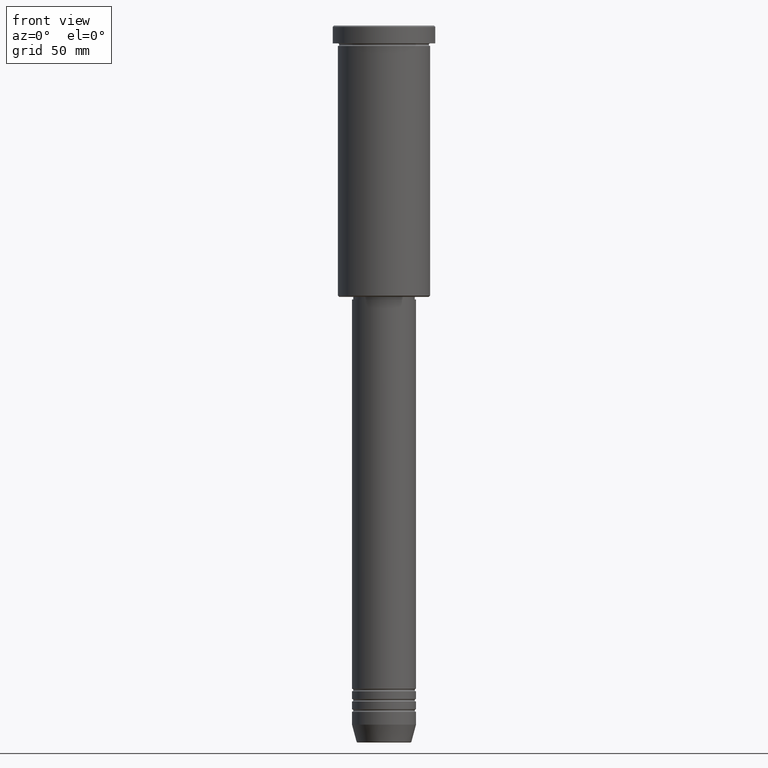
[diagram: clean part render]
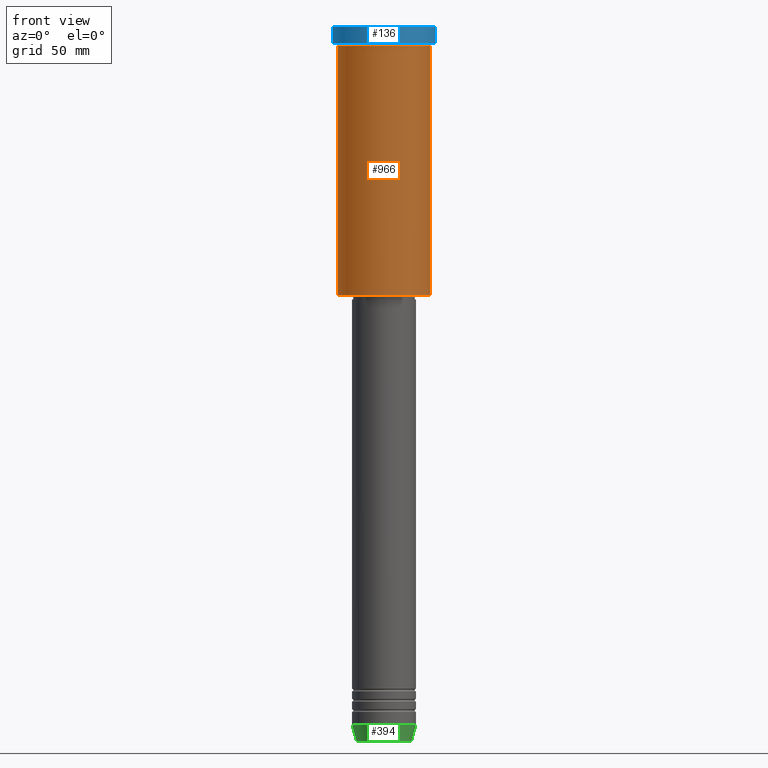
[diagram: same view with three faces highlighted in distinct colors, each labeled with its STEP entity id]
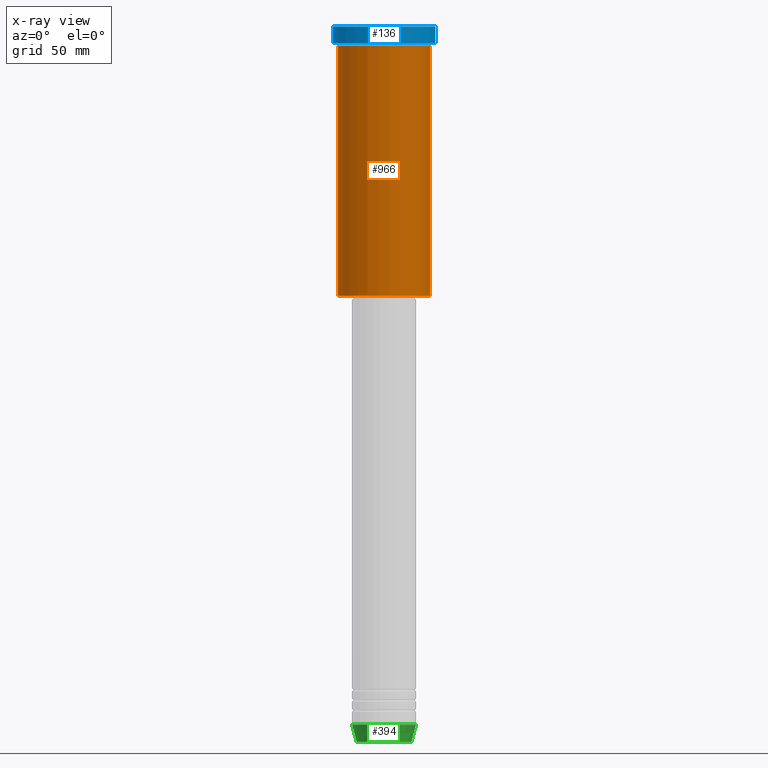
[diagram: x-ray of the same camera — body ghosted, the three highlighted faces saturated]
A machine part, front view with three faces highlighted in distinct colors.
The next image is the same camera in x-ray (body ghosted, the three faces saturated) — at least one of them is partly hidden behind the body in this view.
Their STEP definitions:

[orange] entity #966 — the highlighted cylindrical surface (partial cylindrical patch) has radius 18 mm, axis along (-0, -0, 1).
#110 = CARTESIAN_POINT ( 'NONE',  ( 18.00000000000000000, 0.000000000000000000, -7.999999999999996447 ) ) ;
#145 = EDGE_CURVE ( 'NONE', #833, #1133, #1112, .T. ) ;
#184 = CARTESIAN_POINT ( 'NONE',  ( -18.00000000000000000, 2.204364238465235428E-15, 0.000000000000000000 ) ) ;
#223 = AXIS2_PLACEMENT_3D ( 'NONE', #511, #389, #1116 ) ;
#225 = VECTOR ( 'NONE', #531, 1000.000000000000000 ) ;
#240 = DIRECTION ( 'NONE',  ( -1.000000000000000000, 0.000000000000000000, 0.000000000000000000 ) ) ;
#275 = LINE ( 'NONE', #184, #225 ) ;
#314 = ORIENTED_EDGE ( 'NONE', *, *, #425, .T. ) ;
#330 = DIRECTION ( 'NONE',  ( -0.000000000000000000, -0.000000000000000000, 1.000000000000000000 ) ) ;
#366 = VERTEX_POINT ( 'NONE', #110 ) ;
#385 = CARTESIAN_POINT ( 'NONE',  ( -18.00000000000000000, 2.204364238465235428E-15, -7.999999999999996447 ) ) ;
#389 = DIRECTION ( 'NONE',  ( -0.000000000000000000, -0.000000000000000000, 1.000000000000000000 ) ) ;
#425 = EDGE_CURVE ( 'NONE', #1133, #366, #840, .T. ) ;
#442 = VERTEX_POINT ( 'NONE', #385 ) ;
#463 = CARTESIAN_POINT ( 'NONE',  ( 18.00000000000000000, 0.000000000000000000, -105.4999999999999432 ) ) ;
#499 = DIRECTION ( 'NONE',  ( -0.000000000000000000, -0.000000000000000000, 1.000000000000000000 ) ) ;
#511 = CARTESIAN_POINT ( 'NONE',  ( 0.000000000000000000, 0.000000000000000000, -7.999999999999996447 ) ) ;
#531 = DIRECTION ( 'NONE',  ( -0.000000000000000000, -0.000000000000000000, 1.000000000000000000 ) ) ;
#534 = EDGE_CURVE ( 'NONE', #442, #366, #731, .T. ) ;
#625 = DIRECTION ( 'NONE',  ( -0.000000000000000000, -0.000000000000000000, 1.000000000000000000 ) ) ;
#731 = CIRCLE ( 'NONE', #223, 18.00000000000000000 ) ;
#773 = ORIENTED_EDGE ( 'NONE', *, *, #1069, .F. ) ;
#823 = CARTESIAN_POINT ( 'NONE',  ( 18.00000000000000000, 0.000000000000000000, 0.000000000000000000 ) ) ;
#829 = ORIENTED_EDGE ( 'NONE', *, *, #145, .T. ) ;
#833 = VERTEX_POINT ( 'NONE', #902 ) ;
#840 = LINE ( 'NONE', #823, #1171 ) ;
#877 = FACE_OUTER_BOUND ( 'NONE', #963, .T. ) ;
#902 = CARTESIAN_POINT ( 'NONE',  ( -18.00000000000000000, 2.204364238465235428E-15, -105.4999999999999432 ) ) ;
#955 = AXIS2_PLACEMENT_3D ( 'NONE', #1140, #330, #240 ) ;
#963 = EDGE_LOOP ( 'NONE', ( #773, #829, #314, #1026 ) ) ;
#966 = ADVANCED_FACE ( 'NONE', ( #877 ), #1066, .T. ) ;
#1015 = AXIS2_PLACEMENT_3D ( 'NONE', #1141, #499, #1144 ) ;
#1026 = ORIENTED_EDGE ( 'NONE', *, *, #534, .F. ) ;
#1066 = CYLINDRICAL_SURFACE ( 'NONE', #1015, 18.00000000000000000 ) ;
#1069 = EDGE_CURVE ( 'NONE', #833, #442, #275, .T. ) ;
#1112 = CIRCLE ( 'NONE', #955, 18.00000000000000000 ) ;
#1116 = DIRECTION ( 'NONE',  ( 1.000000000000000000, 0.000000000000000000, 0.000000000000000000 ) ) ;
#1133 = VERTEX_POINT ( 'NONE', #463 ) ;
#1140 = CARTESIAN_POINT ( 'NONE',  ( 0.000000000000000000, 0.000000000000000000, -105.4999999999999432 ) ) ;
#1141 = CARTESIAN_POINT ( 'NONE',  ( 0.000000000000000000, 0.000000000000000000, 0.000000000000000000 ) ) ;
#1144 = DIRECTION ( 'NONE',  ( 1.000000000000000000, 0.000000000000000000, 0.000000000000000000 ) ) ;
#1171 = VECTOR ( 'NONE', #625, 1000.000000000000000 ) ;

[blue] entity #136 — the highlighted cylindrical surface (partial cylindrical patch) has radius 20 mm, axis along (-0, -0, 1).
#53 = DIRECTION ( 'NONE',  ( -0.000000000000000000, -0.000000000000000000, 1.000000000000000000 ) ) ;
#65 = CARTESIAN_POINT ( 'NONE',  ( 20.00000000000000000, 0.000000000000000000, -0.4999999999999692468 ) ) ;
#107 = ORIENTED_EDGE ( 'NONE', *, *, #735, .T. ) ;
#108 = VERTEX_POINT ( 'NONE', #683 ) ;
#136 = ADVANCED_FACE ( 'NONE', ( #144 ), #504, .T. ) ;
#144 = FACE_OUTER_BOUND ( 'NONE', #1169, .T. ) ;
#211 = EDGE_CURVE ( 'NONE', #108, #1123, #602, .T. ) ;
#224 = VECTOR ( 'NONE', #280, 1000.000000000000000 ) ;
#252 = AXIS2_PLACEMENT_3D ( 'NONE', #907, #1071, #982 ) ;
#280 = DIRECTION ( 'NONE',  ( -0.000000000000000000, -0.000000000000000000, 1.000000000000000000 ) ) ;
#350 = DIRECTION ( 'NONE',  ( -0.000000000000000000, -0.000000000000000000, 1.000000000000000000 ) ) ;
#432 = CARTESIAN_POINT ( 'NONE',  ( -20.00000000000000000, 2.449293598294706513E-15, -0.4999999999999692468 ) ) ;
#451 = CARTESIAN_POINT ( 'NONE',  ( -20.00000000000000000, 2.449293598294706513E-15, 0.000000000000000000 ) ) ;
#504 = CYLINDRICAL_SURFACE ( 'NONE', #524, 20.00000000000000000 ) ;
#516 = LINE ( 'NONE', #1070, #224 ) ;
#524 = AXIS2_PLACEMENT_3D ( 'NONE', #867, #53, #775 ) ;
#543 = VECTOR ( 'NONE', #350, 1000.000000000000000 ) ;
#557 = ORIENTED_EDGE ( 'NONE', *, *, #891, .T. ) ;
#602 = LINE ( 'NONE', #451, #543 ) ;
#629 = DIRECTION ( 'NONE',  ( 1.000000000000000000, 0.000000000000000000, 0.000000000000000000 ) ) ;
#683 = CARTESIAN_POINT ( 'NONE',  ( -20.00000000000000000, 2.449293598294706513E-15, -6.999999999999995559 ) ) ;
#729 = CARTESIAN_POINT ( 'NONE',  ( 0.000000000000000000, 0.000000000000000000, -6.999999999999995559 ) ) ;
#735 = EDGE_CURVE ( 'NONE', #910, #846, #516, .T. ) ;
#736 = CIRCLE ( 'NONE', #252, 20.00000000000000000 ) ;
#762 = ORIENTED_EDGE ( 'NONE', *, *, #211, .F. ) ;
#775 = DIRECTION ( 'NONE',  ( 1.000000000000000000, 0.000000000000000000, 0.000000000000000000 ) ) ;
#789 = AXIS2_PLACEMENT_3D ( 'NONE', #729, #1096, #629 ) ;
#846 = VERTEX_POINT ( 'NONE', #65 ) ;
#867 = CARTESIAN_POINT ( 'NONE',  ( 0.000000000000000000, 0.000000000000000000, 0.000000000000000000 ) ) ;
#891 = EDGE_CURVE ( 'NONE', #846, #1123, #736, .T. ) ;
#907 = CARTESIAN_POINT ( 'NONE',  ( 0.000000000000000000, 0.000000000000000000, -0.4999999999999692468 ) ) ;
#910 = VERTEX_POINT ( 'NONE', #1138 ) ;
#982 = DIRECTION ( 'NONE',  ( 1.000000000000000000, 0.000000000000000000, 0.000000000000000000 ) ) ;
#1018 = ORIENTED_EDGE ( 'NONE', *, *, #1054, .T. ) ;
#1054 = EDGE_CURVE ( 'NONE', #108, #910, #1174, .T. ) ;
#1070 = CARTESIAN_POINT ( 'NONE',  ( 20.00000000000000000, 0.000000000000000000, 0.000000000000000000 ) ) ;
#1071 = DIRECTION ( 'NONE',  ( 0.000000000000000000, 0.000000000000000000, -1.000000000000000000 ) ) ;
#1096 = DIRECTION ( 'NONE',  ( -0.000000000000000000, -0.000000000000000000, 1.000000000000000000 ) ) ;
#1123 = VERTEX_POINT ( 'NONE', #432 ) ;
#1138 = CARTESIAN_POINT ( 'NONE',  ( 20.00000000000000000, 0.000000000000000000, -6.999999999999995559 ) ) ;
#1169 = EDGE_LOOP ( 'NONE', ( #762, #1018, #107, #557 ) ) ;
#1174 = CIRCLE ( 'NONE', #789, 20.00000000000000000 ) ;

[green] entity #394 — the highlighted conical surface has half-angle 15 deg.
#16 = CARTESIAN_POINT ( 'NONE',  ( 0.000000000000000000, 0.000000000000000000, -273.0000000000000000 ) ) ;
#50 = CONICAL_SURFACE ( 'NONE', #424, 12.50000000000000000, 0.2617993877991500740 ) ;
#54 = CIRCLE ( 'NONE', #890, 10.72365507213719127 ) ;
#59 = ORIENTED_EDGE ( 'NONE', *, *, #1113, .F. ) ;
#243 = CARTESIAN_POINT ( 'NONE',  ( 0.000000000000000000, 0.000000000000000000, -273.0000000000000000 ) ) ;
#286 = CARTESIAN_POINT ( 'NONE',  ( 10.72365507213719127, 0.000000000000000000, -279.6294095225512706 ) ) ;
#309 = ORIENTED_EDGE ( 'NONE', *, *, #559, .T. ) ;
#377 = AXIS2_PLACEMENT_3D ( 'NONE', #243, #772, #864 ) ;
#388 = VERTEX_POINT ( 'NONE', #468 ) ;
#394 = ADVANCED_FACE ( 'NONE', ( #832 ), #50, .T. ) ;
#399 = DIRECTION ( 'NONE',  ( 0.2588190451025213501, 0.000000000000000000, 0.9659258262890680902 ) ) ;
#418 = CARTESIAN_POINT ( 'NONE',  ( 0.000000000000000000, 0.000000000000000000, -279.6294095225512706 ) ) ;
#424 = AXIS2_PLACEMENT_3D ( 'NONE', #16, #939, #845 ) ;
#468 = CARTESIAN_POINT ( 'NONE',  ( -10.72365507213719127, 1.422038742429750516E-15, -279.6294095225512706 ) ) ;
#483 = VERTEX_POINT ( 'NONE', #1046 ) ;
#491 = CIRCLE ( 'NONE', #377, 12.50000000000000000 ) ;
#547 = ORIENTED_EDGE ( 'NONE', *, *, #999, .F. ) ;
#559 = EDGE_CURVE ( 'NONE', #1092, #1034, #579, .T. ) ;
#579 = LINE ( 'NONE', #956, #975 ) ;
#589 = DIRECTION ( 'NONE',  ( -0.000000000000000000, -0.000000000000000000, 1.000000000000000000 ) ) ;
#772 = DIRECTION ( 'NONE',  ( -0.000000000000000000, -0.000000000000000000, 1.000000000000000000 ) ) ;
#804 = ORIENTED_EDGE ( 'NONE', *, *, #987, .T. ) ;
#832 = FACE_OUTER_BOUND ( 'NONE', #906, .T. ) ;
#834 = VECTOR ( 'NONE', #903, 1000.000000000000000 ) ;
#845 = DIRECTION ( 'NONE',  ( 1.000000000000000000, 0.000000000000000000, 0.000000000000000000 ) ) ;
#864 = DIRECTION ( 'NONE',  ( 1.000000000000000000, 0.000000000000000000, 0.000000000000000000 ) ) ;
#890 = AXIS2_PLACEMENT_3D ( 'NONE', #418, #589, #1060 ) ;
#903 = DIRECTION ( 'NONE',  ( -0.2588190451025213501, 3.169619151431772337E-17, 0.9659258262890680902 ) ) ;
#906 = EDGE_LOOP ( 'NONE', ( #59, #804, #309, #547 ) ) ;
#939 = DIRECTION ( 'NONE',  ( -0.000000000000000000, -0.000000000000000000, 1.000000000000000000 ) ) ;
#956 = CARTESIAN_POINT ( 'NONE',  ( 12.50000000000000000, 0.000000000000000000, -273.0000000000000000 ) ) ;
#975 = VECTOR ( 'NONE', #399, 1000.000000000000000 ) ;
#987 = EDGE_CURVE ( 'NONE', #388, #1092, #54, .T. ) ;
#999 = EDGE_CURVE ( 'NONE', #483, #1034, #491, .T. ) ;
#1034 = VERTEX_POINT ( 'NONE', #1080 ) ;
#1046 = CARTESIAN_POINT ( 'NONE',  ( -12.50000000000000000, 1.530808498934191521E-15, -273.0000000000000000 ) ) ;
#1060 = DIRECTION ( 'NONE',  ( 1.000000000000000000, 0.000000000000000000, 0.000000000000000000 ) ) ;
#1075 = CARTESIAN_POINT ( 'NONE',  ( -12.50000000000000000, 1.530808498934191521E-15, -273.0000000000000000 ) ) ;
#1080 = CARTESIAN_POINT ( 'NONE',  ( 12.50000000000000000, 0.000000000000000000, -273.0000000000000000 ) ) ;
#1091 = LINE ( 'NONE', #1075, #834 ) ;
#1092 = VERTEX_POINT ( 'NONE', #286 ) ;
#1113 = EDGE_CURVE ( 'NONE', #388, #483, #1091, .T. ) ;